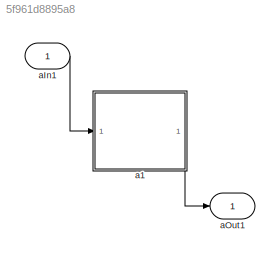
MODEL slx_5f961d8895a8
KIND model
CONFIG AbsTol = auto
CONFIG EnableMultiTasking = off
CONFIG FixedStep = auto
CONFIG MaxStep = auto
CONFIG MinStep = auto
CONFIG RelTol = 1e-3
CONFIG SampleTimeConstraint = Unconstrained
CONFIG Solver = VariableStepAuto
CONFIG SolverName = VariableStepAuto
CONFIG StartTime = 0.0
CONFIG StopTime = 10.0
BLOCK [ModelReference] a1
  ModelNameDialog = Mission_A1
  ModelReferenceVersion = 1.1
  Ports = [1, 1]
BLOCK [Inport] aIn1
  IconDisplay = Port number
  OutDataTypeStr = double
BLOCK [Outport] aOut1
  IconDisplay = Port number
  OutDataTypeStr = double
LINE a1:1 -> aOut1:1
LINE aIn1:1 -> a1:1
